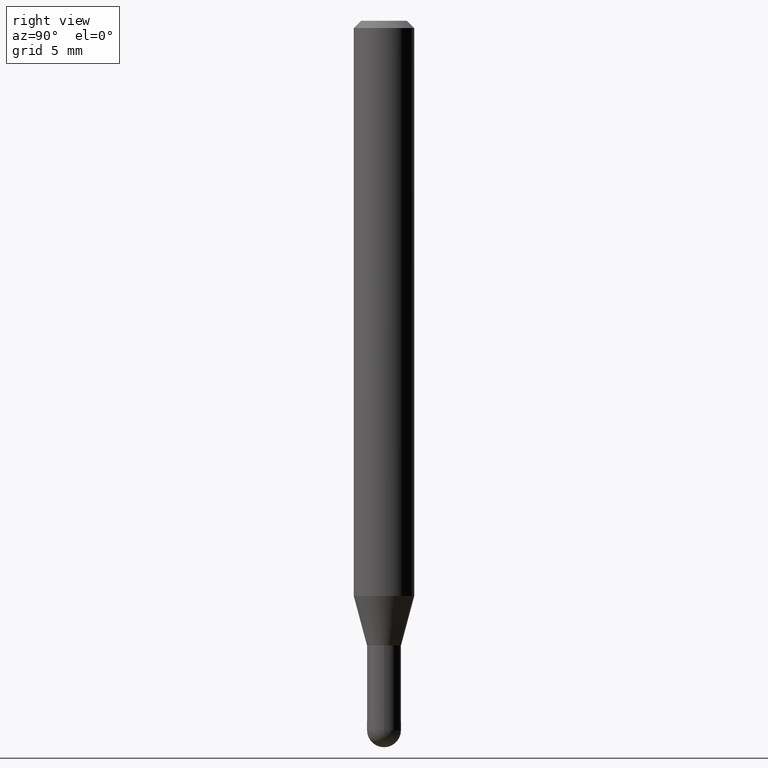
[diagram: clean part render]
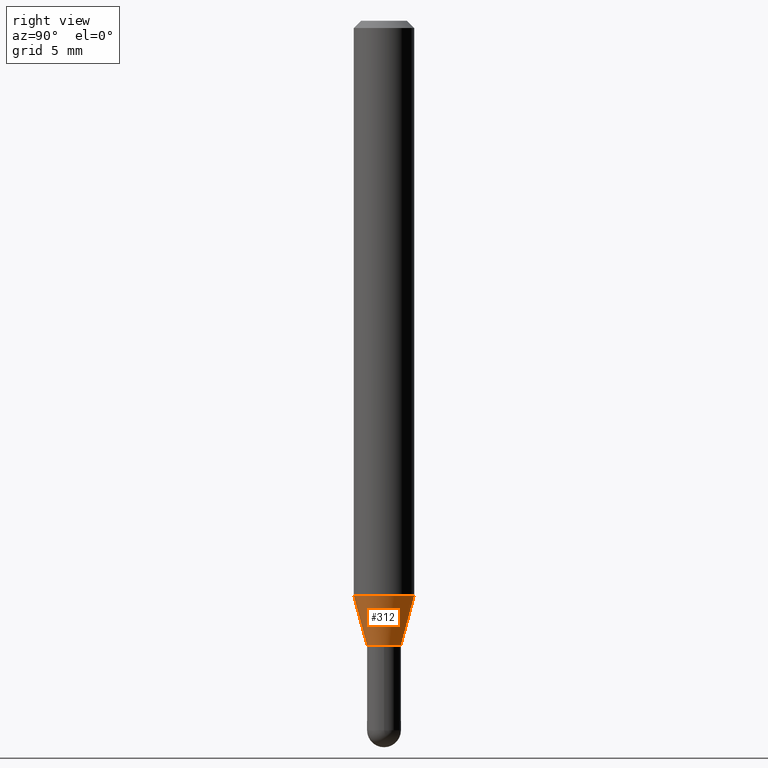
[diagram: same view with one face highlighted and labeled with its STEP entity id]
A machine part, right view. The second image highlights one B-rep face of the part: STEP entity #312.
In plain terms, the highlighted conical surface has half-angle 15 deg.
Its self-contained STEP definition (entity closure, byte-faithful):
#21 = VERTEX_POINT ( 'NONE', #49 ) ;
#41 = EDGE_CURVE ( 'NONE', #21, #381, #189, .T. ) ;
#43 = DIRECTION ( 'NONE',  ( -1.807323732225383782E-15, -0.2588190451025258465, 0.9659258262890669799 ) ) ;
#49 = CARTESIAN_POINT ( 'NONE',  ( 3.463895836830799138E-16, 0.03499999999999569428, -1.290000000000000258 ) ) ;
#63 = DIRECTION ( 'NONE',  ( -6.982962677686265922E-15, -1.000000000000000000, 4.370956789862821150E-15 ) ) ;
#69 = VERTEX_POINT ( 'NONE', #364 ) ;
#111 = CARTESIAN_POINT ( 'NONE',  ( 4.440892098500914096E-16, 0.06249999999999581585, -1.187368602791860628 ) ) ;
#127 = AXIS2_PLACEMENT_3D ( 'NONE', #291, #245, #63 ) ;
#140 = CARTESIAN_POINT ( 'NONE',  ( -4.364351673553628760E-16, -0.06250000000000417721, -1.187368602791860184 ) ) ;
#153 = AXIS2_PLACEMENT_3D ( 'NONE', #493, #173, #249 ) ;
#156 = CARTESIAN_POINT ( 'NONE',  ( 3.154508998517572521E-29, -4.504219665816400546E-15, -1.290000000000000258 ) ) ;
#163 = EDGE_CURVE ( 'NONE', #329, #381, #393, .T. ) ;
#173 = DIRECTION ( 'NONE',  ( -2.445355812804319673E-29, 3.491643151795659130E-15, 1.000000000000000000 ) ) ;
#179 = CIRCLE ( 'NONE', #454, 0.03500000000000019762 ) ;
#189 = LINE ( 'NONE', #347, #354 ) ;
#218 = LINE ( 'NONE', #427, #369 ) ;
#245 = DIRECTION ( 'NONE',  ( -2.445355812804319673E-29, 3.491643151795659130E-15, 1.000000000000000000 ) ) ;
#247 = EDGE_LOOP ( 'NONE', ( #416, #256, #317, #399 ) ) ;
#249 = DIRECTION ( 'NONE',  ( -6.982962677686265133E-15, -1.000000000000000000, 0.000000000000000000 ) ) ;
#256 = ORIENTED_EDGE ( 'NONE', *, *, #41, .T. ) ;
#291 = CARTESIAN_POINT ( 'NONE',  ( 2.903538714778418821E-29, -4.145867450595379478E-15, -1.187368602791860406 ) ) ;
#312 = ADVANCED_FACE ( 'NONE', ( #413 ), #425, .T. ) ;
#317 = ORIENTED_EDGE ( 'NONE', *, *, #163, .F. ) ;
#329 = VERTEX_POINT ( 'NONE', #140 ) ;
#347 = CARTESIAN_POINT ( 'NONE',  ( 2.486899575160679744E-16, 0.03499999999999569428, -1.290000000000000258 ) ) ;
#354 = VECTOR ( 'NONE', #512, 39.37007874015748143 ) ;
#364 = CARTESIAN_POINT ( 'NONE',  ( -2.444036937189891511E-16, -0.03500000000000470096, -1.290000000000000258 ) ) ;
#369 = VECTOR ( 'NONE', #43, 39.37007874015748143 ) ;
#381 = VERTEX_POINT ( 'NONE', #111 ) ;
#386 = DIRECTION ( 'NONE',  ( -2.445355812804319673E-29, 3.491643151795659130E-15, 1.000000000000000000 ) ) ;
#393 = CIRCLE ( 'NONE', #127, 0.06250000000000000000 ) ;
#399 = ORIENTED_EDGE ( 'NONE', *, *, #475, .F. ) ;
#413 = FACE_OUTER_BOUND ( 'NONE', #247, .T. ) ;
#416 = ORIENTED_EDGE ( 'NONE', *, *, #437, .T. ) ;
#425 = CONICAL_SURFACE ( 'NONE', #153, 0.03500000000000019762, 0.2617993877991582341 ) ;
#427 = CARTESIAN_POINT ( 'NONE',  ( -2.444036937189891511E-16, -0.03500000000000470096, -1.290000000000000258 ) ) ;
#437 = EDGE_CURVE ( 'NONE', #69, #21, #179, .T. ) ;
#454 = AXIS2_PLACEMENT_3D ( 'NONE', #156, #386, #463 ) ;
#463 = DIRECTION ( 'NONE',  ( -6.982962677686265133E-15, -1.000000000000000000, 0.000000000000000000 ) ) ;
#475 = EDGE_CURVE ( 'NONE', #69, #329, #218, .T. ) ;
#493 = CARTESIAN_POINT ( 'NONE',  ( 3.154508998517572521E-29, -4.504219665816400546E-15, -1.290000000000000258 ) ) ;
#512 = DIRECTION ( 'NONE',  ( 1.839019923739654747E-15, 0.2588190451025326189, 0.9659258262890650926 ) ) ;